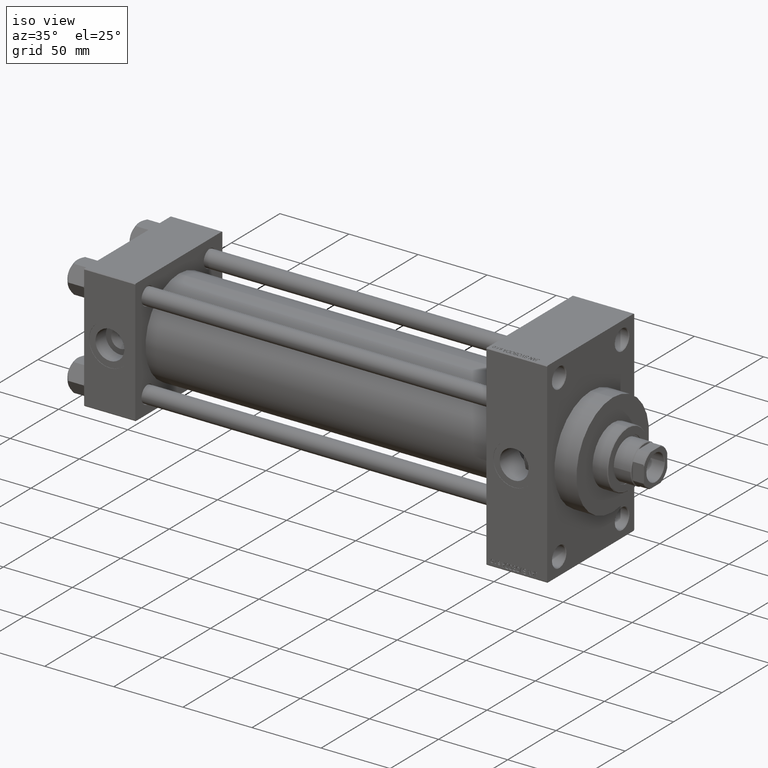
[diagram: clean part render]
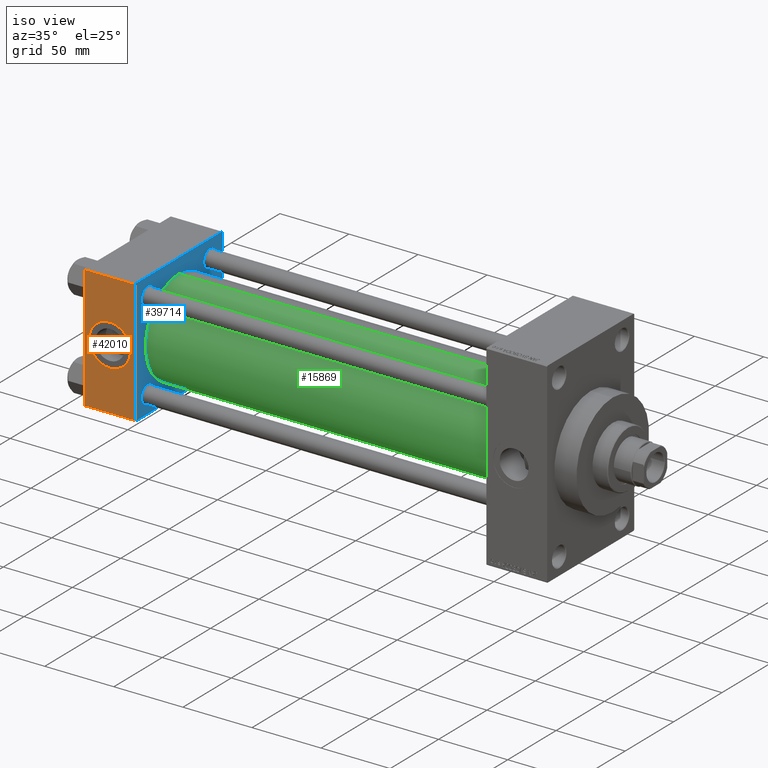
[diagram: same view with three faces highlighted in distinct colors, each labeled with its STEP entity id]
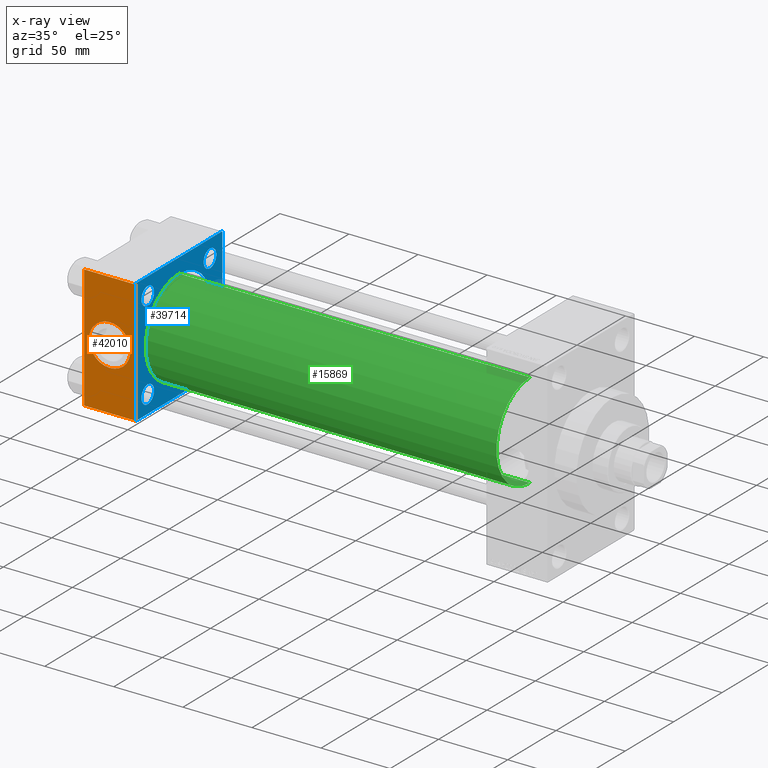
[diagram: x-ray of the same camera — body ghosted, the three highlighted faces saturated]
A machine part, iso view with three faces highlighted in distinct colors.
The next image is the same camera in x-ray (body ghosted, the three faces saturated) — at least one of them is partly hidden behind the body in this view.
Their STEP definitions:

[orange] entity #42010 — the highlighted planar face has unit normal (0, 1, 0).
#432 = VERTEX_POINT ( 'NONE', #24258 ) ;
#951 = CARTESIAN_POINT ( 'NONE',  ( 37.00000000000000000, -45.00000000000000711, 45.00000000000000000 ) ) ;
#1693 = ORIENTED_EDGE ( 'NONE', *, *, #3385, .F. ) ;
#1770 = DIRECTION ( 'NONE',  ( 0.000000000000000000, 0.000000000000000000, -1.000000000000000000 ) ) ;
#2864 = DIRECTION ( 'NONE',  ( -1.000000000000000000, 0.000000000000000000, 0.000000000000000000 ) ) ;
#3385 = EDGE_CURVE ( 'NONE', #17498, #27244, #42006, .T. ) ;
#3830 = VECTOR ( 'NONE', #43369, 1000.000000000000000 ) ;
#5129 = VERTEX_POINT ( 'NONE', #45453 ) ;
#6052 = DIRECTION ( 'NONE',  ( 0.000000000000000000, 0.000000000000000000, -1.000000000000000000 ) ) ;
#6596 = AXIS2_PLACEMENT_3D ( 'NONE', #8965, #24652, #31871 ) ;
#8013 = ORIENTED_EDGE ( 'NONE', *, *, #26058, .T. ) ;
#8965 = CARTESIAN_POINT ( 'NONE',  ( 37.00000000000000000, -45.00000000000000711, 45.00000000000000000 ) ) ;
#9259 = CARTESIAN_POINT ( 'NONE',  ( 18.50000000000000000, -45.00000000000000000, -3.469446951953614978E-15 ) ) ;
#9789 = DIRECTION ( 'NONE',  ( 0.000000000000000000, -1.000000000000000000, -8.673617379884036705E-17 ) ) ;
#9846 = ORIENTED_EDGE ( 'NONE', *, *, #28938, .T. ) ;
#9994 = LINE ( 'NONE', #24710, #3830 ) ;
#10678 = DIRECTION ( 'NONE',  ( 0.000000000000000000, 7.709882115452476934E-17, -1.000000000000000000 ) ) ;
#11756 = VERTEX_POINT ( 'NONE', #33024 ) ;
#12687 = FACE_OUTER_BOUND ( 'NONE', #34479, .T. ) ;
#15901 = DIRECTION ( 'NONE',  ( 0.000000000000000000, 7.709882115452476934E-17, -1.000000000000000000 ) ) ;
#16175 = EDGE_CURVE ( 'NONE', #11756, #5129, #20127, .T. ) ;
#16707 = ORIENTED_EDGE ( 'NONE', *, *, #31715, .F. ) ;
#17498 = VERTEX_POINT ( 'NONE', #24455 ) ;
#17664 = CARTESIAN_POINT ( 'NONE',  ( 0.000000000000000000, -45.00000000000000711, 44.49999999999997158 ) ) ;
#18406 = EDGE_LOOP ( 'NONE', ( #16707, #1693 ) ) ;
#18791 = ORIENTED_EDGE ( 'NONE', *, *, #16175, .F. ) ;
#20127 = LINE ( 'NONE', #951, #39326 ) ;
#20994 = CARTESIAN_POINT ( 'NONE',  ( 18.50000000000000000, -45.00000000000000000, -3.469446951953614978E-15 ) ) ;
#21357 = AXIS2_PLACEMENT_3D ( 'NONE', #20994, #9789, #6052 ) ;
#22395 = LINE ( 'NONE', #48546, #39850 ) ;
#24258 = CARTESIAN_POINT ( 'NONE',  ( 0.000000000000000000, -45.00000000000000000, -44.49999999999995737 ) ) ;
#24455 = CARTESIAN_POINT ( 'NONE',  ( 18.50000000000000355, -45.00000000000000000, 14.99999999999999822 ) ) ;
#24652 = DIRECTION ( 'NONE',  ( -0.000000000000000000, 1.000000000000000000, 7.709882115452478166E-17 ) ) ;
#24710 = CARTESIAN_POINT ( 'NONE',  ( 37.00000000000000000, -45.00000000000000000, -44.49999999999998579 ) ) ;
#26058 = EDGE_CURVE ( 'NONE', #11756, #46531, #28545, .T. ) ;
#27244 = VERTEX_POINT ( 'NONE', #47416 ) ;
#28545 = LINE ( 'NONE', #43727, #40312 ) ;
#28587 = AXIS2_PLACEMENT_3D ( 'NONE', #9259, #43127, #1770 ) ;
#28938 = EDGE_CURVE ( 'NONE', #432, #5129, #9994, .T. ) ;
#31715 = EDGE_CURVE ( 'NONE', #27244, #17498, #42122, .T. ) ;
#31871 = DIRECTION ( 'NONE',  ( 0.000000000000000000, -7.709882115452478166E-17, 1.000000000000000000 ) ) ;
#32114 = PLANE ( 'NONE',  #6596 ) ;
#33024 = CARTESIAN_POINT ( 'NONE',  ( 37.00000000000000000, -45.00000000000000711, 44.49999999999997158 ) ) ;
#34479 = EDGE_LOOP ( 'NONE', ( #44292, #9846, #18791, #8013 ) ) ;
#39326 = VECTOR ( 'NONE', #15901, 1000.000000000000000 ) ;
#39681 = EDGE_CURVE ( 'NONE', #46531, #432, #22395, .T. ) ;
#39850 = VECTOR ( 'NONE', #10678, 1000.000000000000000 ) ;
#40312 = VECTOR ( 'NONE', #2864, 1000.000000000000000 ) ;
#42006 = CIRCLE ( 'NONE', #21357, 15.00000000000000178 ) ;
#42010 = ADVANCED_FACE ( 'NONE', ( #46808, #12687 ), #32114, .F. ) ;
#42122 = CIRCLE ( 'NONE', #28587, 15.00000000000000178 ) ;
#43127 = DIRECTION ( 'NONE',  ( 0.000000000000000000, -1.000000000000000000, -8.673617379884036705E-17 ) ) ;
#43369 = DIRECTION ( 'NONE',  ( 1.000000000000000000, 0.000000000000000000, 0.000000000000000000 ) ) ;
#43727 = CARTESIAN_POINT ( 'NONE',  ( 37.00000000000000000, -45.00000000000000711, 44.49999999999997158 ) ) ;
#44292 = ORIENTED_EDGE ( 'NONE', *, *, #39681, .T. ) ;
#45453 = CARTESIAN_POINT ( 'NONE',  ( 37.00000000000000000, -45.00000000000000000, -44.49999999999995737 ) ) ;
#46531 = VERTEX_POINT ( 'NONE', #17664 ) ;
#46808 = FACE_BOUND ( 'NONE', #18406, .T. ) ;
#47416 = CARTESIAN_POINT ( 'NONE',  ( 18.50000000000000000, -45.00000000000000000, -15.00000000000000533 ) ) ;
#48546 = CARTESIAN_POINT ( 'NONE',  ( 0.000000000000000000, -45.00000000000000711, 45.00000000000000000 ) ) ;

[blue] entity #39714 — the highlighted planar face has unit normal (-1, 0, 0).
#246 = CARTESIAN_POINT ( 'NONE',  ( 37.00000000000000000, -32.14999999999997726, -25.65000000000006253 ) ) ;
#401 = LINE ( 'NONE', #30301, #46882 ) ;
#440 = EDGE_CURVE ( 'NONE', #37101, #19200, #25244, .T. ) ;
#804 = AXIS2_PLACEMENT_3D ( 'NONE', #5870, #28053, #13590 ) ;
#951 = CARTESIAN_POINT ( 'NONE',  ( 37.00000000000000000, -45.00000000000000711, 45.00000000000000000 ) ) ;
#1083 = DIRECTION ( 'NONE',  ( 1.000000000000000000, -0.000000000000000000, 0.000000000000000000 ) ) ;
#1323 = ORIENTED_EDGE ( 'NONE', *, *, #16175, .T. ) ;
#2194 = DIRECTION ( 'NONE',  ( -1.000000000000000000, 0.000000000000000000, -0.000000000000000000 ) ) ;
#2861 = EDGE_LOOP ( 'NONE', ( #44593, #47024 ) ) ;
#3032 = DIRECTION ( 'NONE',  ( 0.000000000000000000, 0.7071067811865474617, -0.7071067811865474617 ) ) ;
#3040 = AXIS2_PLACEMENT_3D ( 'NONE', #20694, #6237, #20940 ) ;
#3448 = PLANE ( 'NONE',  #8858 ) ;
#3697 = EDGE_CURVE ( 'NONE', #24860, #47014, #31707, .T. ) ;
#3750 = CARTESIAN_POINT ( 'NONE',  ( 37.00000000000000000, -32.14999999999997726, -32.15000000000001279 ) ) ;
#4056 = VERTEX_POINT ( 'NONE', #37289 ) ;
#4517 = CARTESIAN_POINT ( 'NONE',  ( 37.00000000000000000, 44.99999999999998579, -44.99999999999998579 ) ) ;
#4669 = VERTEX_POINT ( 'NONE', #37113 ) ;
#4691 = DIRECTION ( 'NONE',  ( -0.000000000000000000, 0.000000000000000000, 1.000000000000000000 ) ) ;
#4870 = AXIS2_PLACEMENT_3D ( 'NONE', #31585, #15646, #30842 ) ;
#5129 = VERTEX_POINT ( 'NONE', #45453 ) ;
#5713 = LINE ( 'NONE', #16674, #21333 ) ;
#5870 = CARTESIAN_POINT ( 'NONE',  ( 37.00000000000000000, -32.14999999999997726, 32.15000000000001279 ) ) ;
#6237 = DIRECTION ( 'NONE',  ( -1.000000000000000000, 0.000000000000000000, -0.000000000000000000 ) ) ;
#6312 = EDGE_CURVE ( 'NONE', #27098, #11237, #33381, .T. ) ;
#7038 = AXIS2_PLACEMENT_3D ( 'NONE', #31262, #28253, #39210 ) ;
#7194 = FACE_BOUND ( 'NONE', #46177, .T. ) ;
#7296 = EDGE_CURVE ( 'NONE', #47014, #24860, #31851, .T. ) ;
#7792 = CIRCLE ( 'NONE', #35631, 6.500000000000061284 ) ;
#8416 = CIRCLE ( 'NONE', #45762, 6.499999999999950262 ) ;
#8576 = ORIENTED_EDGE ( 'NONE', *, *, #28134, .T. ) ;
#8858 = AXIS2_PLACEMENT_3D ( 'NONE', #23130, #8927, #4691 ) ;
#8927 = DIRECTION ( 'NONE',  ( -1.000000000000000000, 0.000000000000000000, -0.000000000000000000 ) ) ;
#9007 = CARTESIAN_POINT ( 'NONE',  ( 36.99999999999997868, -2.602085213965210642E-15, 34.50000000000000000 ) ) ;
#10441 = DIRECTION ( 'NONE',  ( 0.000000000000000000, -0.7071067811865474617, 0.7071067811865474617 ) ) ;
#11237 = VERTEX_POINT ( 'NONE', #14686 ) ;
#11704 = ORIENTED_EDGE ( 'NONE', *, *, #41443, .T. ) ;
#11756 = VERTEX_POINT ( 'NONE', #33024 ) ;
#12684 = DIRECTION ( 'NONE',  ( 0.000000000000000000, 0.000000000000000000, -1.000000000000000000 ) ) ;
#12943 = CARTESIAN_POINT ( 'NONE',  ( 37.00000000000000000, 44.99999999999998579, -44.49999999999995737 ) ) ;
#12997 = LINE ( 'NONE', #47368, #23172 ) ;
#13022 = CARTESIAN_POINT ( 'NONE',  ( 36.99999999999997868, -2.602085213965210642E-15, 0.000000000000000000 ) ) ;
#13545 = EDGE_CURVE ( 'NONE', #32081, #46405, #12997, .T. ) ;
#13590 = DIRECTION ( 'NONE',  ( 0.000000000000000000, 0.000000000000000000, 1.000000000000000000 ) ) ;
#13626 = CARTESIAN_POINT ( 'NONE',  ( 37.00000000000000000, 44.49999999999998579, -44.99999999999998579 ) ) ;
#13770 = DIRECTION ( 'NONE',  ( -1.000000000000000000, 0.000000000000000000, -0.000000000000000000 ) ) ;
#14247 = CARTESIAN_POINT ( 'NONE',  ( 37.00000000000000000, -44.49999999999998579, -45.00000000000000000 ) ) ;
#14254 = ORIENTED_EDGE ( 'NONE', *, *, #48146, .F. ) ;
#14519 = VERTEX_POINT ( 'NONE', #39655 ) ;
#14686 = CARTESIAN_POINT ( 'NONE',  ( 37.00000000000000000, 32.14999999999999147, 38.65000000000006963 ) ) ;
#14711 = EDGE_CURVE ( 'NONE', #14519, #29204, #8416, .T. ) ;
#14992 = VERTEX_POINT ( 'NONE', #12943 ) ;
#15113 = CARTESIAN_POINT ( 'NONE',  ( 37.00000000000000000, 32.14999999999999147, 32.15000000000000568 ) ) ;
#15646 = DIRECTION ( 'NONE',  ( -1.000000000000000000, 0.000000000000000000, -0.000000000000000000 ) ) ;
#15901 = DIRECTION ( 'NONE',  ( 0.000000000000000000, 7.709882115452476934E-17, -1.000000000000000000 ) ) ;
#16060 = CARTESIAN_POINT ( 'NONE',  ( 37.00000000000000000, 32.14999999999999147, 25.64999999999994529 ) ) ;
#16175 = EDGE_CURVE ( 'NONE', #11756, #5129, #20127, .T. ) ;
#16331 = EDGE_LOOP ( 'NONE', ( #49176, #25973 ) ) ;
#16674 = CARTESIAN_POINT ( 'NONE',  ( 37.00000000000000000, 44.99999999999998579, 45.00000000000001421 ) ) ;
#17117 = ORIENTED_EDGE ( 'NONE', *, *, #6312, .T. ) ;
#17178 = ORIENTED_EDGE ( 'NONE', *, *, #32740, .T. ) ;
#17608 = ORIENTED_EDGE ( 'NONE', *, *, #28450, .T. ) ;
#17657 = VECTOR ( 'NONE', #3032, 1000.000000000000114 ) ;
#18834 = CIRCLE ( 'NONE', #49064, 6.500000000000061284 ) ;
#19200 = VERTEX_POINT ( 'NONE', #9007 ) ;
#19451 = VECTOR ( 'NONE', #10441, 1000.000000000000114 ) ;
#19806 = CARTESIAN_POINT ( 'NONE',  ( 37.00000000000000000, 32.14999999999999147, -38.65000000000006963 ) ) ;
#19919 = VERTEX_POINT ( 'NONE', #19806 ) ;
#20127 = LINE ( 'NONE', #951, #39326 ) ;
#20694 = CARTESIAN_POINT ( 'NONE',  ( 37.00000000000000000, -32.14999999999997726, 32.15000000000001279 ) ) ;
#20761 = CARTESIAN_POINT ( 'NONE',  ( 37.00000000000000000, 32.14999999999999147, -32.15000000000000568 ) ) ;
#20940 = DIRECTION ( 'NONE',  ( 0.000000000000000000, 0.000000000000000000, 1.000000000000000000 ) ) ;
#21071 = ORIENTED_EDGE ( 'NONE', *, *, #34951, .T. ) ;
#21333 = VECTOR ( 'NONE', #12684, 1000.000000000000000 ) ;
#22148 = FACE_BOUND ( 'NONE', #2861, .T. ) ;
#23130 = CARTESIAN_POINT ( 'NONE',  ( 37.00000000000000000, 0.000000000000000000, 0.000000000000000000 ) ) ;
#23172 = VECTOR ( 'NONE', #36157, 1000.000000000000000 ) ;
#23921 = CARTESIAN_POINT ( 'NONE',  ( 37.00000000000000000, 32.14999999999999147, 32.15000000000000568 ) ) ;
#24546 = CARTESIAN_POINT ( 'NONE',  ( 36.99999999999997868, 1.622946243093158675E-15, -34.50000000000000000 ) ) ;
#24758 = DIRECTION ( 'NONE',  ( 0.000000000000000000, 0.000000000000000000, 1.000000000000000000 ) ) ;
#24860 = VERTEX_POINT ( 'NONE', #45055 ) ;
#25244 = CIRCLE ( 'NONE', #30778, 34.50000000000000000 ) ;
#25488 = EDGE_CURVE ( 'NONE', #4056, #19919, #18834, .T. ) ;
#25711 = LINE ( 'NONE', #14247, #17657 ) ;
#25850 = DIRECTION ( 'NONE',  ( 0.000000000000000000, 0.000000000000000000, 1.000000000000000000 ) ) ;
#25938 = DIRECTION ( 'NONE',  ( 0.000000000000000000, 0.000000000000000000, 1.000000000000000000 ) ) ;
#25973 = ORIENTED_EDGE ( 'NONE', *, *, #7296, .T. ) ;
#26009 = EDGE_LOOP ( 'NONE', ( #17117, #17178 ) ) ;
#26127 = FACE_BOUND ( 'NONE', #16331, .T. ) ;
#26333 = DIRECTION ( 'NONE',  ( -1.000000000000000000, 0.000000000000000000, -0.000000000000000000 ) ) ;
#26915 = CIRCLE ( 'NONE', #48389, 6.500000000000061284 ) ;
#27098 = VERTEX_POINT ( 'NONE', #16060 ) ;
#27364 = ORIENTED_EDGE ( 'NONE', *, *, #29959, .F. ) ;
#27517 = CARTESIAN_POINT ( 'NONE',  ( 37.00000000000000000, 44.49999999999998579, 45.00000000000001421 ) ) ;
#28053 = DIRECTION ( 'NONE',  ( -1.000000000000000000, 0.000000000000000000, -0.000000000000000000 ) ) ;
#28134 = EDGE_CURVE ( 'NONE', #46405, #11756, #47348, .T. ) ;
#28253 = DIRECTION ( 'NONE',  ( 1.000000000000000000, -0.000000000000000000, 0.000000000000000000 ) ) ;
#28450 = EDGE_CURVE ( 'NONE', #19919, #4056, #7792, .T. ) ;
#29204 = VERTEX_POINT ( 'NONE', #246 ) ;
#29307 = EDGE_CURVE ( 'NONE', #47186, #14992, #5713, .T. ) ;
#29959 = EDGE_CURVE ( 'NONE', #19200, #37101, #47603, .T. ) ;
#30301 = CARTESIAN_POINT ( 'NONE',  ( 37.00000000000000000, 44.99999999999998579, -44.49999999999998579 ) ) ;
#30429 = ORIENTED_EDGE ( 'NONE', *, *, #29307, .F. ) ;
#30778 = AXIS2_PLACEMENT_3D ( 'NONE', #13022, #1083, #35704 ) ;
#30798 = DIRECTION ( 'NONE',  ( 0.000000000000000000, 0.000000000000000000, 1.000000000000000000 ) ) ;
#30821 = VECTOR ( 'NONE', #42878, 1000.000000000000114 ) ;
#30842 = DIRECTION ( 'NONE',  ( 0.000000000000000000, 0.000000000000000000, 1.000000000000000000 ) ) ;
#31102 = CIRCLE ( 'NONE', #4870, 6.499999999999950262 ) ;
#31228 = EDGE_LOOP ( 'NONE', ( #17608, #48971 ) ) ;
#31262 = CARTESIAN_POINT ( 'NONE',  ( 36.99999999999997868, -2.602085213965210642E-15, 0.000000000000000000 ) ) ;
#31585 = CARTESIAN_POINT ( 'NONE',  ( 37.00000000000000000, -32.14999999999997726, -32.15000000000001279 ) ) ;
#31707 = CIRCLE ( 'NONE', #3040, 6.499999999999950262 ) ;
#31851 = CIRCLE ( 'NONE', #804, 6.499999999999950262 ) ;
#32081 = VERTEX_POINT ( 'NONE', #27517 ) ;
#32598 = CARTESIAN_POINT ( 'NONE',  ( 37.00000000000000000, 32.14999999999999147, -32.15000000000000568 ) ) ;
#32740 = EDGE_CURVE ( 'NONE', #11237, #27098, #26915, .T. ) ;
#33024 = CARTESIAN_POINT ( 'NONE',  ( 37.00000000000000000, -45.00000000000000711, 44.49999999999997158 ) ) ;
#33381 = CIRCLE ( 'NONE', #49302, 6.500000000000061284 ) ;
#34903 = DIRECTION ( 'NONE',  ( 0.000000000000000000, -1.000000000000000000, -1.541976423090495633E-16 ) ) ;
#34951 = EDGE_CURVE ( 'NONE', #39916, #14992, #401, .T. ) ;
#35377 = CARTESIAN_POINT ( 'NONE',  ( 37.00000000000000000, 44.99999999999998579, 44.50000000000001421 ) ) ;
#35631 = AXIS2_PLACEMENT_3D ( 'NONE', #32598, #2194, #25850 ) ;
#35704 = DIRECTION ( 'NONE',  ( 0.000000000000000000, 0.000000000000000000, 1.000000000000000000 ) ) ;
#36157 = DIRECTION ( 'NONE',  ( 0.000000000000000000, -1.000000000000000000, -1.541976423090495387E-16 ) ) ;
#37101 = VERTEX_POINT ( 'NONE', #24546 ) ;
#37113 = CARTESIAN_POINT ( 'NONE',  ( 37.00000000000000000, -44.49999999999995737, -45.00000000000000000 ) ) ;
#37289 = CARTESIAN_POINT ( 'NONE',  ( 37.00000000000000000, 32.14999999999999147, -25.64999999999994529 ) ) ;
#37326 = FACE_BOUND ( 'NONE', #31228, .T. ) ;
#37570 = FACE_OUTER_BOUND ( 'NONE', #44098, .T. ) ;
#37995 = CARTESIAN_POINT ( 'NONE',  ( 37.00000000000000000, -44.49999999999995737, 45.00000000000000000 ) ) ;
#39089 = DIRECTION ( 'NONE',  ( -1.000000000000000000, 0.000000000000000000, -0.000000000000000000 ) ) ;
#39210 = DIRECTION ( 'NONE',  ( 0.000000000000000000, 0.000000000000000000, 1.000000000000000000 ) ) ;
#39326 = VECTOR ( 'NONE', #15901, 1000.000000000000000 ) ;
#39655 = CARTESIAN_POINT ( 'NONE',  ( 37.00000000000000000, -32.14999999999997726, -38.64999999999996305 ) ) ;
#39714 = ADVANCED_FACE ( 'NONE', ( #22148, #37326, #26127, #41310, #7194, #37570 ), #3448, .F. ) ;
#39765 = EDGE_CURVE ( 'NONE', #29204, #14519, #31102, .T. ) ;
#39916 = VERTEX_POINT ( 'NONE', #13626 ) ;
#40396 = CARTESIAN_POINT ( 'NONE',  ( 37.00000000000000000, -32.14999999999997726, 38.64999999999996305 ) ) ;
#41310 = FACE_BOUND ( 'NONE', #26009, .T. ) ;
#41443 = EDGE_CURVE ( 'NONE', #5129, #4669, #25711, .T. ) ;
#42566 = VECTOR ( 'NONE', #34903, 1000.000000000000000 ) ;
#42878 = DIRECTION ( 'NONE',  ( -0.000000000000000000, -0.7071067811865425767, -0.7071067811865524577 ) ) ;
#43806 = DIRECTION ( 'NONE',  ( 0.000000000000000000, 0.000000000000000000, 1.000000000000000000 ) ) ;
#44064 = LINE ( 'NONE', #45472, #19451 ) ;
#44098 = EDGE_LOOP ( 'NONE', ( #14254, #21071, #30429, #47877, #44948, #8576, #1323, #11704 ) ) ;
#44392 = ORIENTED_EDGE ( 'NONE', *, *, #440, .F. ) ;
#44593 = ORIENTED_EDGE ( 'NONE', *, *, #14711, .T. ) ;
#44625 = DIRECTION ( 'NONE',  ( -1.000000000000000000, 0.000000000000000000, -0.000000000000000000 ) ) ;
#44948 = ORIENTED_EDGE ( 'NONE', *, *, #13545, .T. ) ;
#45055 = CARTESIAN_POINT ( 'NONE',  ( 37.00000000000000000, -32.14999999999997726, 25.65000000000006253 ) ) ;
#45453 = CARTESIAN_POINT ( 'NONE',  ( 37.00000000000000000, -45.00000000000000000, -44.49999999999995737 ) ) ;
#45472 = CARTESIAN_POINT ( 'NONE',  ( 37.00000000000000000, 44.49999999999998579, 45.00000000000001421 ) ) ;
#45731 = DIRECTION ( 'NONE',  ( -0.000000000000000000, 0.7071067811865474617, 0.7071067811865474617 ) ) ;
#45762 = AXIS2_PLACEMENT_3D ( 'NONE', #3750, #44625, #25938 ) ;
#46107 = LINE ( 'NONE', #4517, #42566 ) ;
#46177 = EDGE_LOOP ( 'NONE', ( #27364, #44392 ) ) ;
#46405 = VERTEX_POINT ( 'NONE', #37995 ) ;
#46444 = EDGE_CURVE ( 'NONE', #47186, #32081, #44064, .T. ) ;
#46609 = CARTESIAN_POINT ( 'NONE',  ( 37.00000000000000000, -45.00000000000000711, 44.49999999999997158 ) ) ;
#46882 = VECTOR ( 'NONE', #45731, 1000.000000000000114 ) ;
#47014 = VERTEX_POINT ( 'NONE', #40396 ) ;
#47024 = ORIENTED_EDGE ( 'NONE', *, *, #39765, .T. ) ;
#47186 = VERTEX_POINT ( 'NONE', #35377 ) ;
#47348 = LINE ( 'NONE', #46609, #30821 ) ;
#47368 = CARTESIAN_POINT ( 'NONE',  ( 37.00000000000000000, 44.99999999999998579, 45.00000000000001421 ) ) ;
#47603 = CIRCLE ( 'NONE', #7038, 34.50000000000000000 ) ;
#47877 = ORIENTED_EDGE ( 'NONE', *, *, #46444, .T. ) ;
#48146 = EDGE_CURVE ( 'NONE', #39916, #4669, #46107, .T. ) ;
#48389 = AXIS2_PLACEMENT_3D ( 'NONE', #23921, #39089, #43806 ) ;
#48971 = ORIENTED_EDGE ( 'NONE', *, *, #25488, .T. ) ;
#49064 = AXIS2_PLACEMENT_3D ( 'NONE', #20761, #13770, #24758 ) ;
#49176 = ORIENTED_EDGE ( 'NONE', *, *, #3697, .T. ) ;
#49302 = AXIS2_PLACEMENT_3D ( 'NONE', #15113, #26333, #30798 ) ;

[green] entity #15869 — the highlighted cylindrical surface (partial cylindrical patch) has radius 34.5 mm, axis along (-1, -0, -0).
#1247 = DIRECTION ( 'NONE',  ( -1.000000000000000000, -0.000000000000000000, -0.000000000000000000 ) ) ;
#1492 = CARTESIAN_POINT ( 'NONE',  ( 291.0000000000000000, -2.602085213965210642E-15, 0.000000000000000000 ) ) ;
#3341 = DIRECTION ( 'NONE',  ( 1.000000000000000000, 0.000000000000000000, 0.000000000000000000 ) ) ;
#3583 = CARTESIAN_POINT ( 'NONE',  ( 291.0000000000000000, -2.602085213965210642E-15, 0.000000000000000000 ) ) ;
#3848 = DIRECTION ( 'NONE',  ( -1.000000000000000000, -0.000000000000000000, -0.000000000000000000 ) ) ;
#7038 = AXIS2_PLACEMENT_3D ( 'NONE', #31262, #28253, #39210 ) ;
#8759 = VERTEX_POINT ( 'NONE', #28923 ) ;
#9007 = CARTESIAN_POINT ( 'NONE',  ( 36.99999999999997868, -2.602085213965210642E-15, 34.50000000000000000 ) ) ;
#9537 = ORIENTED_EDGE ( 'NONE', *, *, #38247, .F. ) ;
#10043 = EDGE_LOOP ( 'NONE', ( #37067, #9537, #23890, #35613 ) ) ;
#11050 = CARTESIAN_POINT ( 'NONE',  ( 291.0000000000000000, 1.622946243093158675E-15, -34.50000000000000000 ) ) ;
#11487 = VECTOR ( 'NONE', #41677, 1000.000000000000000 ) ;
#15392 = AXIS2_PLACEMENT_3D ( 'NONE', #1492, #1247, #23939 ) ;
#15869 = ADVANCED_FACE ( 'NONE', ( #20178 ), #23436, .T. ) ;
#16983 = EDGE_CURVE ( 'NONE', #8759, #19200, #45444, .T. ) ;
#18530 = DIRECTION ( 'NONE',  ( 0.000000000000000000, 0.000000000000000000, -1.000000000000000000 ) ) ;
#19200 = VERTEX_POINT ( 'NONE', #9007 ) ;
#20178 = FACE_OUTER_BOUND ( 'NONE', #10043, .T. ) ;
#22324 = CIRCLE ( 'NONE', #39818, 34.50000000000000000 ) ;
#23436 = CYLINDRICAL_SURFACE ( 'NONE', #15392, 34.50000000000000000 ) ;
#23805 = CARTESIAN_POINT ( 'NONE',  ( 291.0000000000000000, 1.622946243093158675E-15, -34.50000000000000000 ) ) ;
#23890 = ORIENTED_EDGE ( 'NONE', *, *, #16983, .T. ) ;
#23939 = DIRECTION ( 'NONE',  ( 0.000000000000000000, 0.000000000000000000, 1.000000000000000000 ) ) ;
#24131 = VERTEX_POINT ( 'NONE', #23805 ) ;
#24546 = CARTESIAN_POINT ( 'NONE',  ( 36.99999999999997868, 1.622946243093158675E-15, -34.50000000000000000 ) ) ;
#26524 = CARTESIAN_POINT ( 'NONE',  ( 291.0000000000000000, -2.602085213965210642E-15, 34.50000000000000000 ) ) ;
#28253 = DIRECTION ( 'NONE',  ( 1.000000000000000000, -0.000000000000000000, 0.000000000000000000 ) ) ;
#28923 = CARTESIAN_POINT ( 'NONE',  ( 291.0000000000000000, -2.602085213965210642E-15, 34.50000000000000000 ) ) ;
#29959 = EDGE_CURVE ( 'NONE', #19200, #37101, #47603, .T. ) ;
#31262 = CARTESIAN_POINT ( 'NONE',  ( 36.99999999999997868, -2.602085213965210642E-15, 0.000000000000000000 ) ) ;
#35613 = ORIENTED_EDGE ( 'NONE', *, *, #29959, .T. ) ;
#37067 = ORIENTED_EDGE ( 'NONE', *, *, #46900, .F. ) ;
#37101 = VERTEX_POINT ( 'NONE', #24546 ) ;
#38247 = EDGE_CURVE ( 'NONE', #8759, #24131, #22324, .T. ) ;
#39210 = DIRECTION ( 'NONE',  ( 0.000000000000000000, 0.000000000000000000, 1.000000000000000000 ) ) ;
#39818 = AXIS2_PLACEMENT_3D ( 'NONE', #3583, #3341, #18530 ) ;
#41677 = DIRECTION ( 'NONE',  ( -1.000000000000000000, -0.000000000000000000, -0.000000000000000000 ) ) ;
#44903 = VECTOR ( 'NONE', #3848, 1000.000000000000000 ) ;
#45165 = LINE ( 'NONE', #11050, #11487 ) ;
#45444 = LINE ( 'NONE', #26524, #44903 ) ;
#46900 = EDGE_CURVE ( 'NONE', #24131, #37101, #45165, .T. ) ;
#47603 = CIRCLE ( 'NONE', #7038, 34.50000000000000000 ) ;